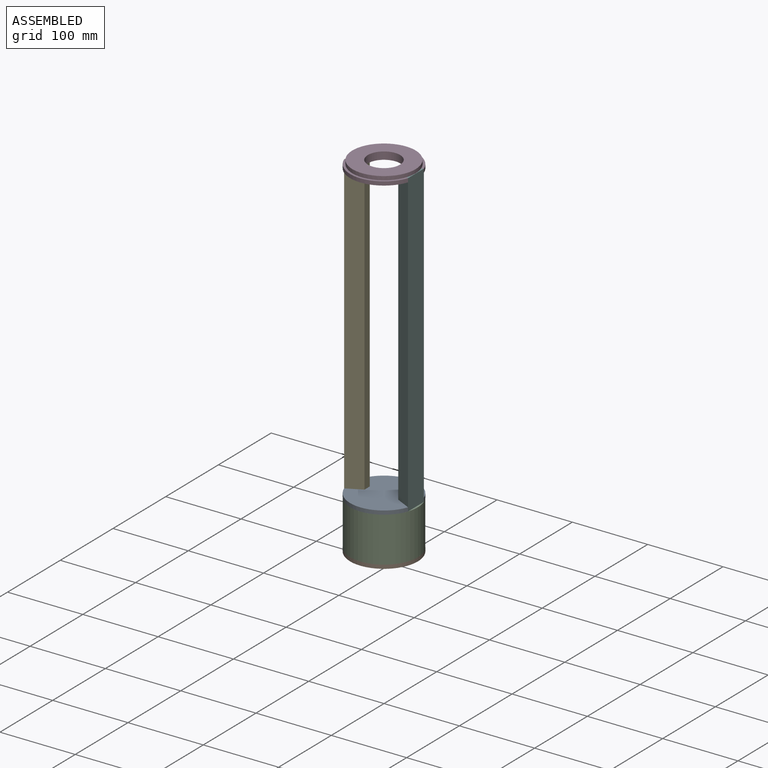
[diagram: assembled view]
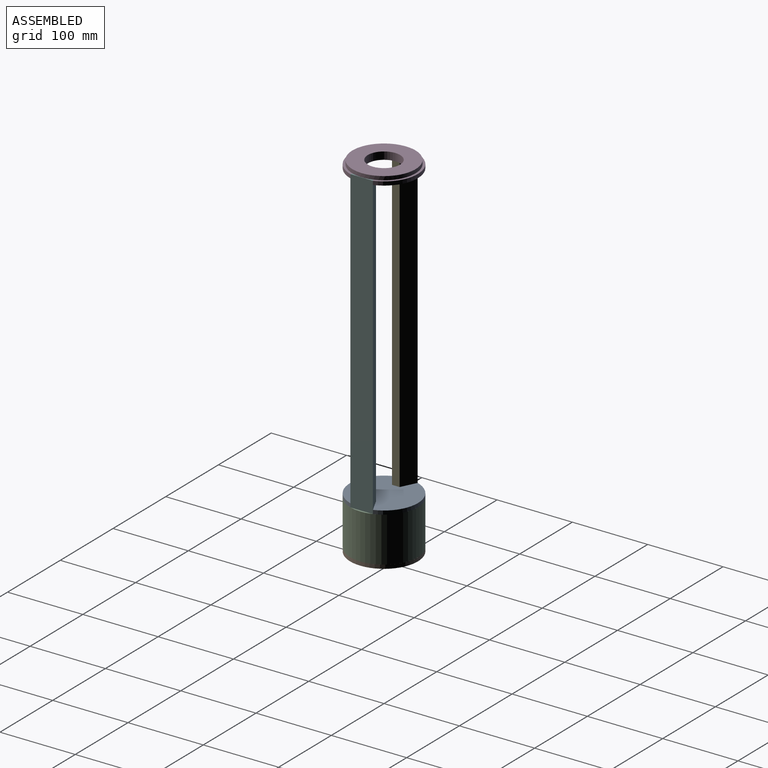
[diagram: assembled view, second angle]
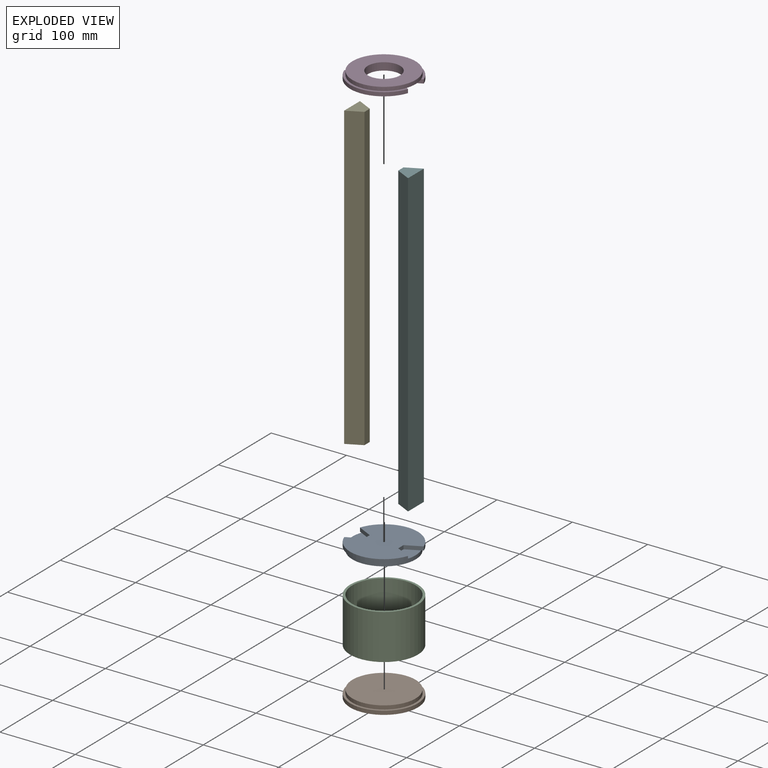
[diagram: exploded view]
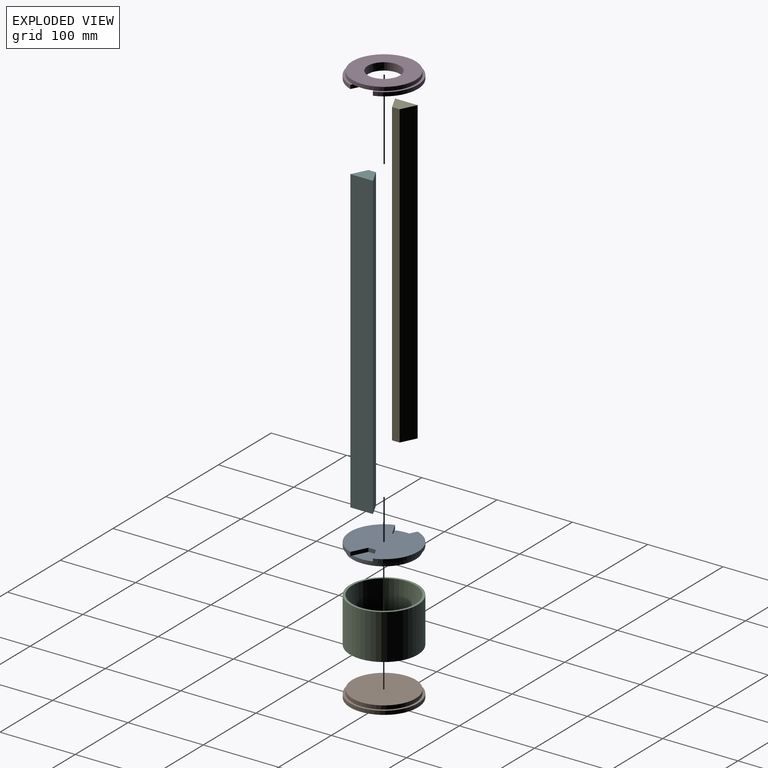
[diagram: exploded view, second angle]
ASSEMBLY  parts=6 mates=5
PART A: 15 faces, bbox 84.9x90x10 mm
  f0: plane 84.85x31.35mm, normal (0,0,1), area 322.4mm2, adj f5,f6,f7,f12
  f1: plane 20x10mm, normal (0.45,0.89,0), area 111.8mm2, adj f2,f8,f9,f10,f14
  f2: cylinder r=45mm len=84.85mm, axis (0,0,1), area 553.9mm2, adj f1,f3,f9,f10
  f3: plane 20x10mm, normal (-0.45,0.89,0), area 111.8mm2, adj f2,f4,f9,f10,f11
  f4: plane 10x5mm, normal (-1,0,0), area 50mm2, adj f3,f5,f9,f11
  f5: plane 20x10mm, normal (-0.45,-0.89,0), area 111.8mm2, adj f0,f4,f6,f9,f11
  f6: cylinder r=45mm len=84.85mm, axis (0,0,1), area 553.9mm2, adj f0,f5,f7,f9
  f7: plane 20x10mm, normal (0.45,-0.89,0), area 111.8mm2, adj f0,f6,f8,f9,f14
  f8: plane 10x5mm, normal (1,0,0), area 50mm2, adj f1,f7,f9,f14
  f9: plane 90x84.85mm, normal (0,0,-1), area 5458.2mm2, adj f1,f2,f3,f4,f5,f6,f7,f8
  f10: plane 84.85x31.35mm, normal (0,0,1), area 322.4mm2, adj f1,f2,f3,f12
  f11: plane 27.29x19.57mm, normal (0,0,-1), area 364.2mm2, adj f3,f4,f5,f12
  f12: cylinder r=42mm len=84mm, axis (0,0,-1), area 1319.5mm2, adj f0,f10,f11,f13,f14
  f13: plane 84x84mm, normal (0,0,1), area 5541.8mm2, adj f12
  f14: plane 27.29x19.57mm, normal (0,0,-1), area 364.2mm2, adj f1,f7,f8,f12
PART B: 5 faces, bbox 90x90x10 mm
  f0: cylinder r=45mm len=90mm, axis (0,0,-1), area 1413.7mm2, adj f1,f2
  f1: plane 90x90mm, normal (0,0,1), area 6361.7mm2, adj f0
  f2: plane 90x90mm, normal (0,0,-1), area 820mm2, adj f0,f3
  f3: cylinder r=42mm len=84mm, axis (0,0,1), area 1319.5mm2, adj f2,f4
  f4: plane 84x84mm, normal (0,0,-1), area 5541.8mm2, adj f3
PART C: 4 faces, bbox 90x90x60 mm
  f0: cylinder r=42mm len=84mm, axis (0,0,-1), area 15833.6mm2, adj f2,f3
  f1: cylinder r=45mm len=90mm, axis (0,0,-1), area 16964.6mm2, adj f2,f3
  f2: plane 90x90mm, normal (0,0,1), area 820mm2, adj f0,f1
  f3: plane 90x90mm, normal (0,0,-1), area 820mm2, adj f0,f1
PART D: 16 faces, bbox 84.9x90x10 mm
  f0: plane 84.85x31.35mm, normal (0,0,1), area 322.4mm2, adj f5,f6,f7,f13
  f1: plane 20x10mm, normal (0.45,0.89,0), area 111.8mm2, adj f2,f9,f10,f11,f15
  f2: cylinder r=45mm len=84.85mm, axis (0,0,1), area 553.9mm2, adj f1,f3,f10,f11
  f3: plane 20x10mm, normal (-0.45,0.89,0), area 111.8mm2, adj f2,f4,f10,f11,f12
  f4: plane 10x5mm, normal (-1,0,0), area 50mm2, adj f3,f5,f10,f12
  f5: plane 20x10mm, normal (-0.45,-0.89,0), area 111.8mm2, adj f0,f4,f6,f10,f12
  f6: cylinder r=45mm len=84.85mm, axis (0,0,1), area 553.9mm2, adj f0,f5,f7,f10
  f7: plane 20x10mm, normal (0.45,-0.89,0), area 111.8mm2, adj f0,f6,f9,f10,f15
  f8: cylinder r=21.5mm len=43mm, axis (0,0,1), area 1350.9mm2, adj f10,f14
  f9: plane 10x5mm, normal (1,0,0), area 50mm2, adj f1,f7,f10,f15
  f10: plane 90x84.85mm, normal (0,0,-1), area 4006mm2, adj f1,f2,f3,f4,f5,f6,f7,f8
  f11: plane 84.85x31.35mm, normal (0,0,1), area 322.4mm2, adj f1,f2,f3,f13
  f12: plane 27.29x19.57mm, normal (0,0,-1), area 364.2mm2, adj f3,f4,f5,f13
  f13: cylinder r=42mm len=84mm, axis (0,0,-1), area 1319.5mm2, adj f0,f11,f12,f14,f15
  f14: plane 84x84mm, normal (0,0,1), area 4089.6mm2, adj f8,f13
  f15: plane 27.29x19.57mm, normal (0,0,-1), area 364.2mm2, adj f1,f7,f9,f13
PART E: 6 faces, bbox 20x30x400 mm
  f0: plane 400x20mm, normal (0.45,-0.89,0), area 8944.3mm2, adj f1,f3,f4,f5
  f1: plane 400x30mm, normal (-1,0,0), area 12000mm2, adj f0,f2,f4,f5
  f2: plane 400x20mm, normal (0.45,0.89,0), area 8944.3mm2, adj f1,f3,f4,f5
  f3: plane 400x10mm, normal (1,0,0), area 4000mm2, adj f0,f2,f4,f5
  f4: plane 30x20mm, normal (0,0,-1), area 400mm2, adj f0,f1,f2,f3
  f5: plane 30x20mm, normal (0,0,1), area 400mm2, adj f0,f1,f2,f3
PART F: same geometry as E
PLACE A rot(axis=(1,0,0),180deg) t=(0,0,-460)mm
PLACE B rot(axis=(1,0,0),180deg) t=(0,0,-460)mm
PLACE C t=(0,0,-460)mm
PLACE D at identity fixed
PLACE E at identity
PLACE F rot(axis=(0,0,1),180deg) t=(0,0,0)mm
MATE fastened E.f4 <-> A.f11  axis (0,0,-1) through (-22.43,0,-430)mm
MATE fastened B.f3 <-> C.f1  axis (0,0,1) through (0,0,-490)mm
MATE fastened C.f1 <-> A.f2  axis (0,0,1) through (0,0,-430)mm
MATE fastened D.f12 <-> E.f5  axis (0,0,1) through (-22.43,0,-30)mm
MATE fastened F.f5 <-> D.f15  axis (0,0,1) through (22.43,0,-30)mm
